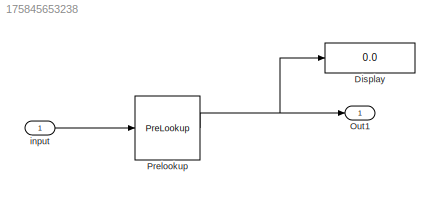
MODEL slx_175845653238
KIND model
CONFIG AbsTol = auto
CONFIG EnableMultiTasking = off
CONFIG FixedStep = 0.1
CONFIG MaxStep = auto
CONFIG MinStep = auto
CONFIG RelTol = 1e-3
CONFIG SampleTimeConstraint = Unconstrained
CONFIG Solver = FixedStepAuto
CONFIG SolverName = FixedStepAuto
CONFIG StartTime = 0.0
CONFIG StopTime = 10.0
BLOCK [Display] Display
  Decimation = 1
  Ports = [1]
BLOCK [Outport] Out1
  IconDisplay = Port number
BLOCK [PreLookup] Prelookup
  BreakpointsData = [10:10:110]
  InputPortMap = u0
  OutputSelection = Index only
  Ports = [1, 1]
BLOCK [Inport] input
  IconDisplay = Port number
NET Prelookup:1 -> Display:1, Out1:1
LINE input:1 -> Prelookup:1
note: NET lines group one-source signal fan-out (src -> all destinations, sorted); 1:1 wires keep LINE
